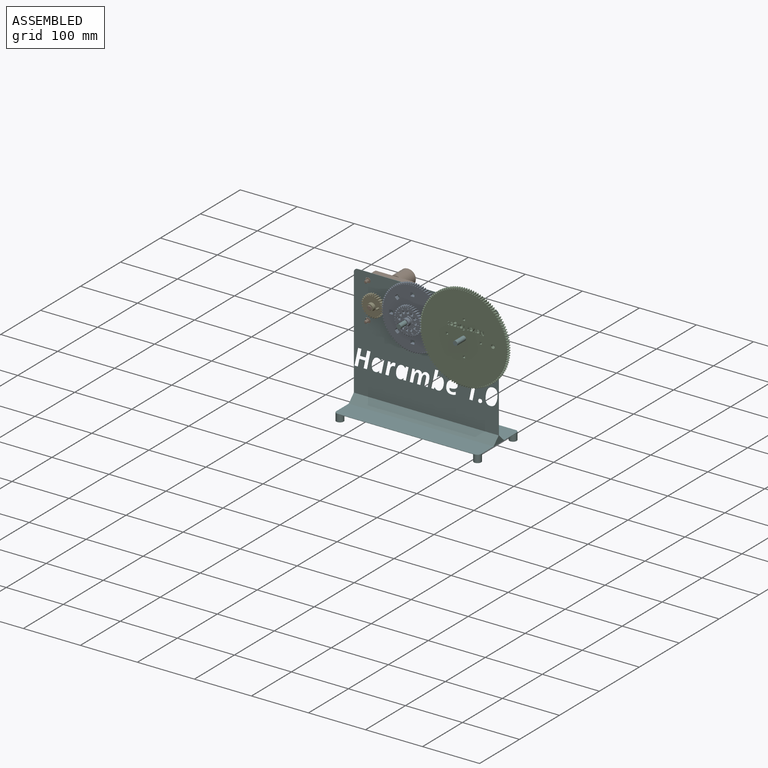
[diagram: assembled view]
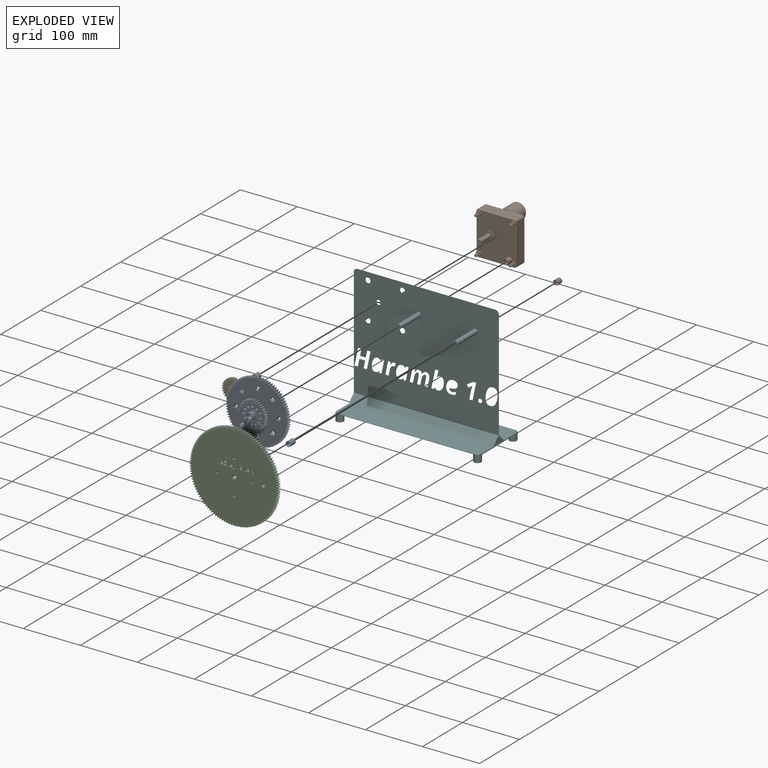
[diagram: exploded view]
GUIDED TOUR — MATED ASSEMBLY WITH SUBASSEMBLIES (Onshape document 69db58481a6f93a4a2a00892, AutoMate assembly 69db58481a6f93a4a2a00892_2e216adc01b97e4ef0a42dc2_9f874ee87bd83c54bac1a078_default)

This assembly has 10 component occurrences arranged in 9 top-level units: 8 individual components plus 1 subassembly (S0). The tour has two levels: first the top level, where each subassembly is treated as one rigid unit; then each subassembly is toured internally in its own section (nesting deeper than one subassembly level is flattened into its subassembly's section).

Components are labeled P0..P9 across the whole record; subassembly units are labeled S0..S0. A mate is a constraint between two units; its type names the relative motion it leaves free:
  FASTENED — locks the two components together rigidly (no relative motion),
  REVOLUTE — leaves rotation about the listed axis free (a hinge).
Axis/direction vectors are unit vectors and 'through' points are millimeter coordinates, both in the assembly's world frame.

TOP-LEVEL MATES (between units; each subassembly's internal mates are listed in its own section)
  1. FASTENED "Fastened 1": P2 <-> P6, direction (0.000, -1.000, 0.000) through (-188.32, -126.64, -29.86) mm
  2. FASTENED "Fastened 2": P7 <-> P6, direction (0.000, 1.000, 0.000) through (-188.32, -127.28, -29.86) mm
  3. REVOLUTE "Revolute 2": S0 <-> P8, axis (0.000, 1.000, 0.000) through (-117.20, -137.44, -29.86) mm
  4. FASTENED "Fastened 4": P8 <-> P6, direction (0.000, 1.000, 0.000) through (-117.20, -127.28, -29.86) mm
  5. FASTENED "Fastened 5": P4 <-> P9, direction (0.000, -1.000, 0.000) through (-18.14, -137.44, -29.86) mm
  6. REVOLUTE "Revolute 4": P3 <-> P9, axis (0.000, 1.000, 0.000) through (-18.14, -150.14, -29.86) mm
  7. FASTENED "Fastened 3": P4 <-> P6, direction (0.000, -1.000, 0.000) through (-18.14, -127.28, -29.86) mm
  8. REVOLUTE "Revolute 1": P5 <-> P7, axis (0.000, 1.000, 0.000) through (-188.32, -137.44, -29.86) mm

TOP-LEVEL ASSEMBLY ORDER
  1. P6 — the base component [order heuristic]
  2. P2 — core [order heuristic]
  3. P7 — core [order heuristic]
  4. S0 — core [order heuristic]
  5. P5 — core [order heuristic]
  6. P8 [order verified]
  7. P4 [order verified]
  8. P9 [order verified]
  9. P3 [order verified]
Order-tag legend:
  [order verified] — this step's position reverses a verified removal order: the component was checked to insert without passing through the ones already placed.
  [order heuristic] — the first 5 components form the assembly's core: parts whose collision-free extraction could not be verified, listed in mate-graph order.

Of the 10 component occurrences, 5 carry the full construction recipe — the FeatureScript program that regenerates the part's solid from scratch; the rest are supplied as boundary geometry only. Each toured unit is shown spotlighted twice — assembled, then exploded with a leader line back to its socket (green = recipe-attached component, orange = geometry-only, blue = subassembly unit; the rest desaturated gray).
NOTE — this tour is split across 3 documents so each fits a 32k-token context. This is document 1: the component sections continue in the remaining 2 documents, each repeating the header above.
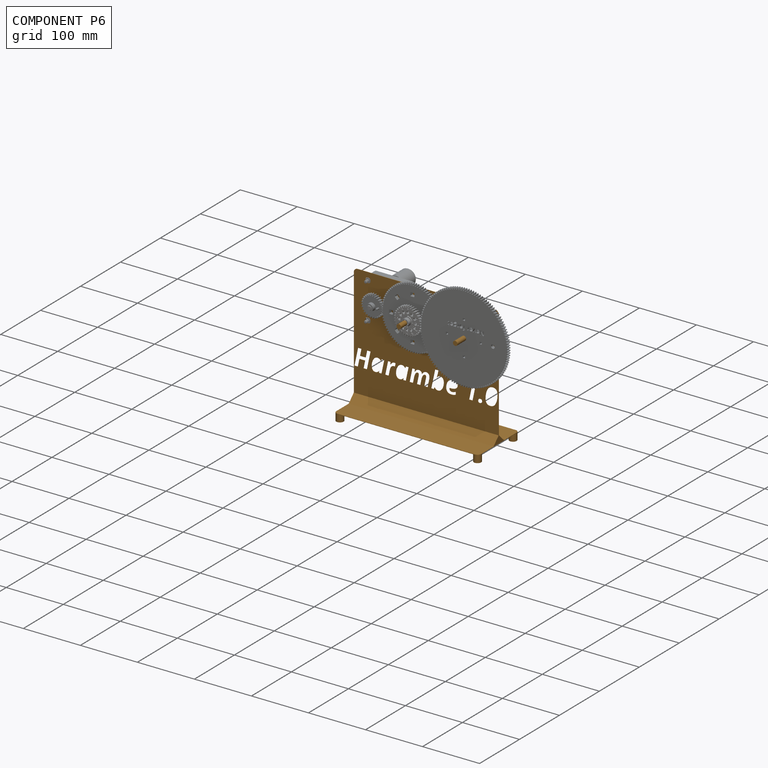
[diagram: component P6 — assembled]
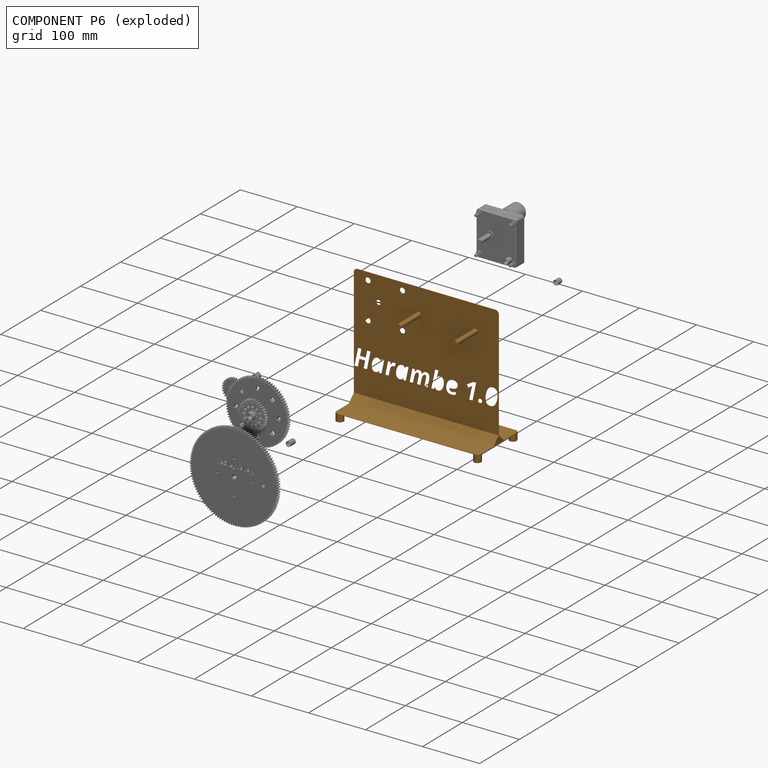
[diagram: component P6 — exploded]
COMPONENT P6 — geometry summary (no construction recipe available for this part):
  bounding box: 254.0 x 223.5 x 102.2 mm
  B-rep topology: 1 solid, 172 faces, 1012 edges
  volume: 100176 mm^3 (2% of its bounding box)
Held by: FASTENED mate "Fastened 1" to P2; FASTENED mate "Fastened 2" to P7; FASTENED mate "Fastened 4" to P8; FASTENED mate "Fastened 3" to P4.
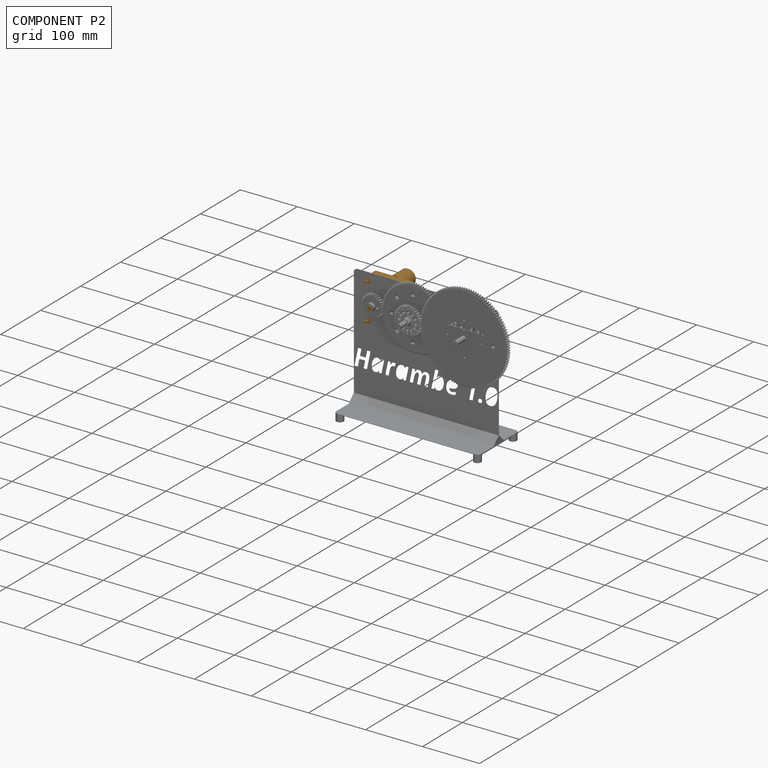
[diagram: component P2 — assembled]
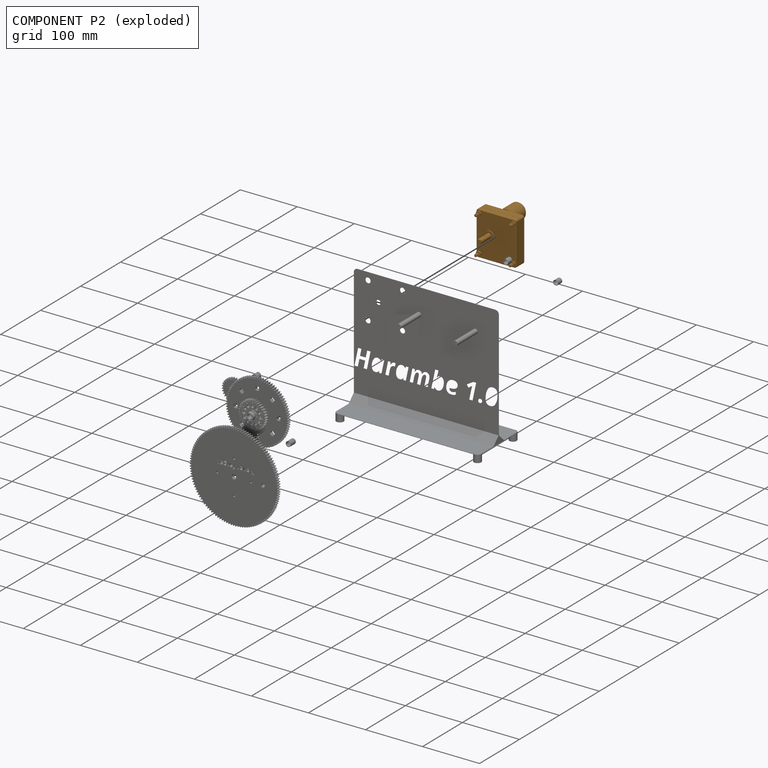
[diagram: component P2 — exploded]
COMPONENT P2 — geometry summary (no construction recipe available for this part):
  bounding box: 88.7 x 77.1 x 70.8 mm
  B-rep topology: 1 solid, 207 faces, 946 edges
  volume: 136218 mm^3 (28% of its bounding box)
Held by: FASTENED mate "Fastened 1" to P6.
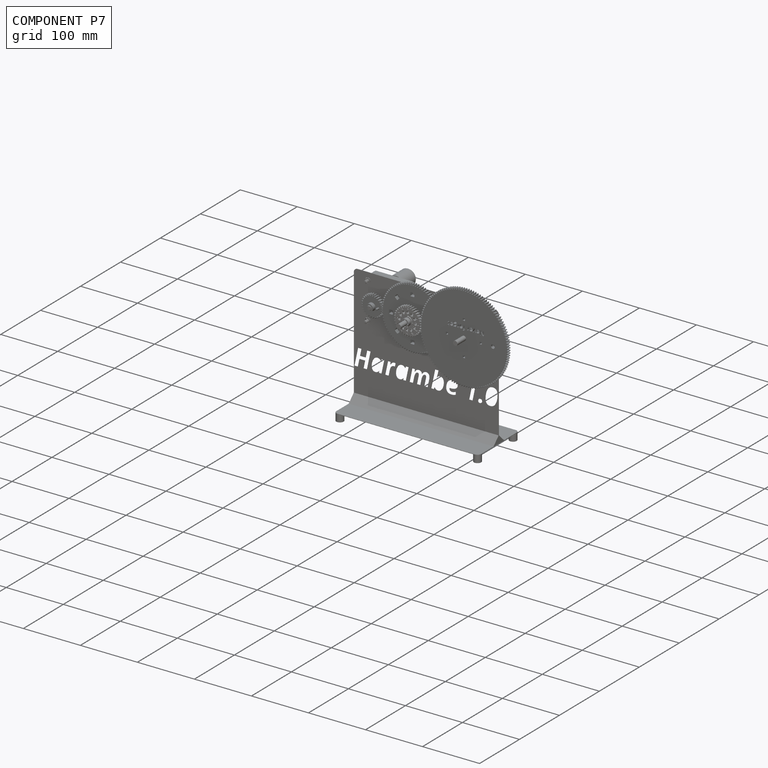
[diagram: component P7 — assembled]
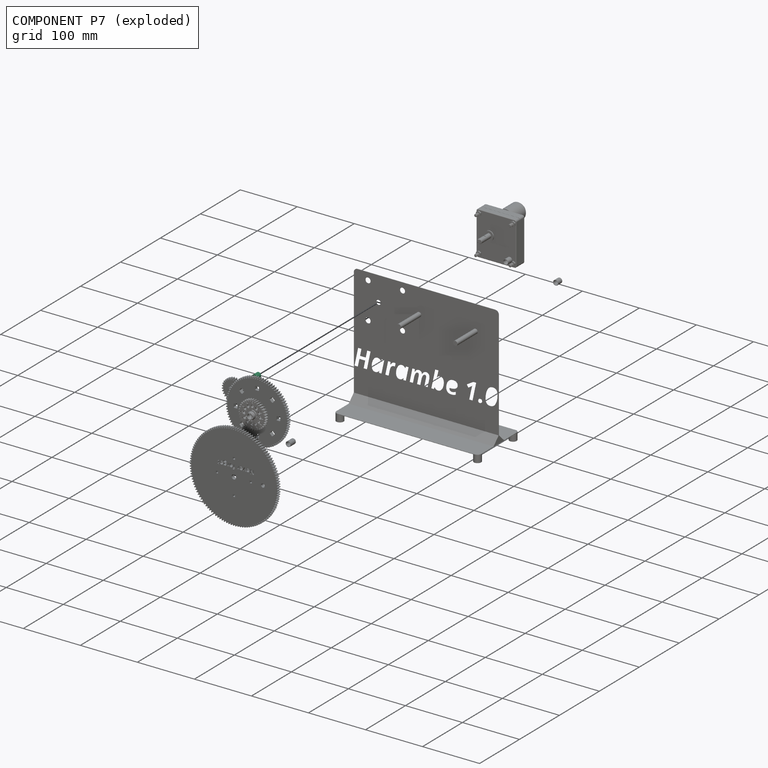
[diagram: component P7 — exploded]
COMPONENT P7 — same part as P4 (CADFS 00229650); its construction recipe is shown at P4.
Held by: FASTENED mate "Fastened 2" to P6; REVOLUTE mate "Revolute 1" to P5.
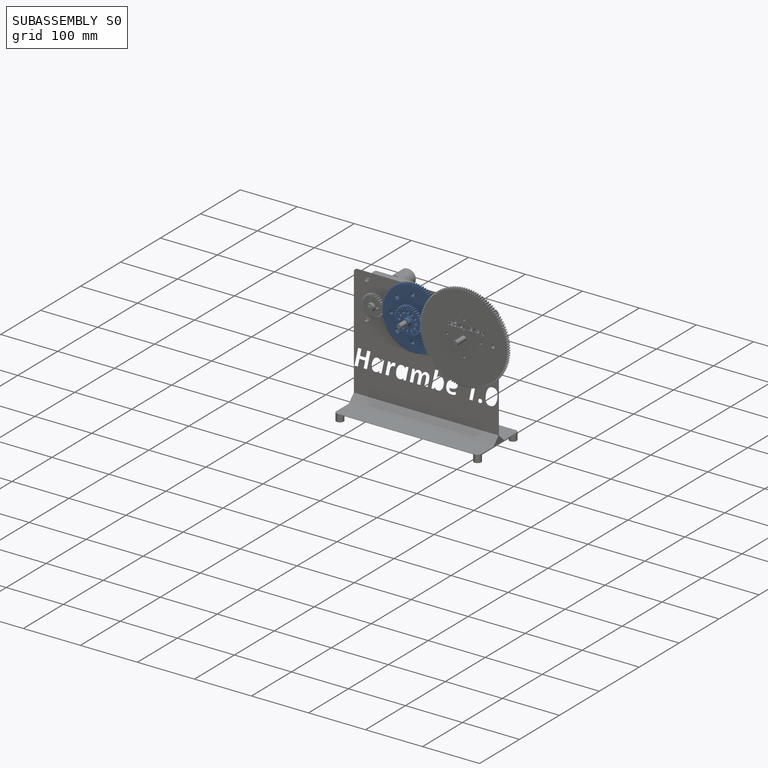
[diagram: subassembly S0 — assembled]
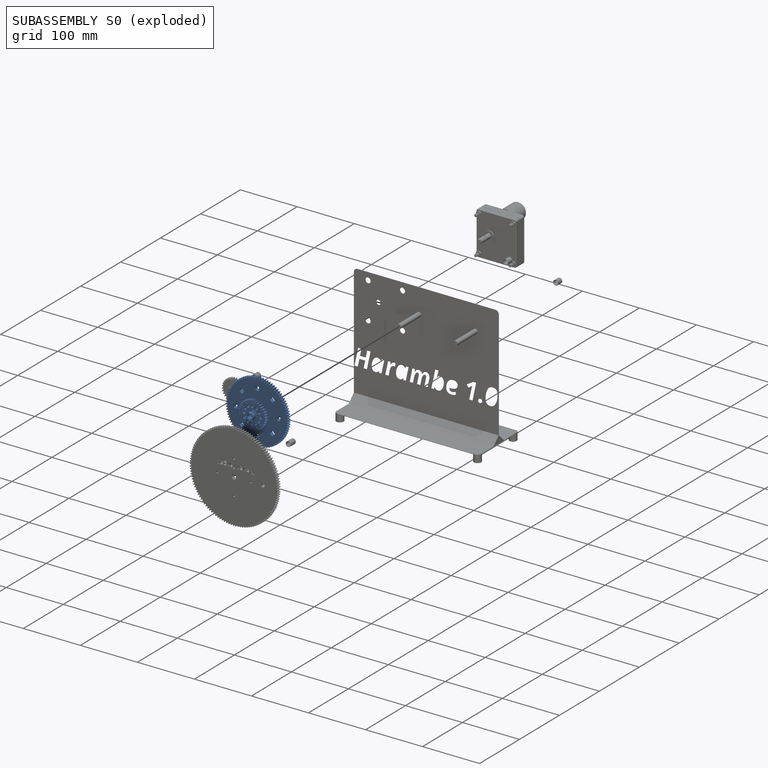
[diagram: subassembly S0 — exploded]
SUBASSEMBLY S0 — 2 components (P0, P1), of which 0 recipe-attached; toured below.
Held by: REVOLUTE mate "Revolute 2" to P8.
